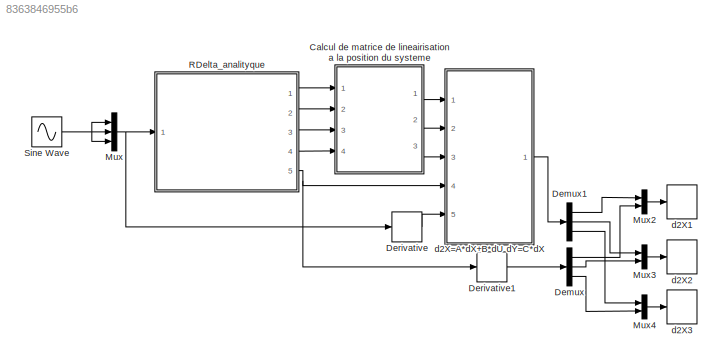
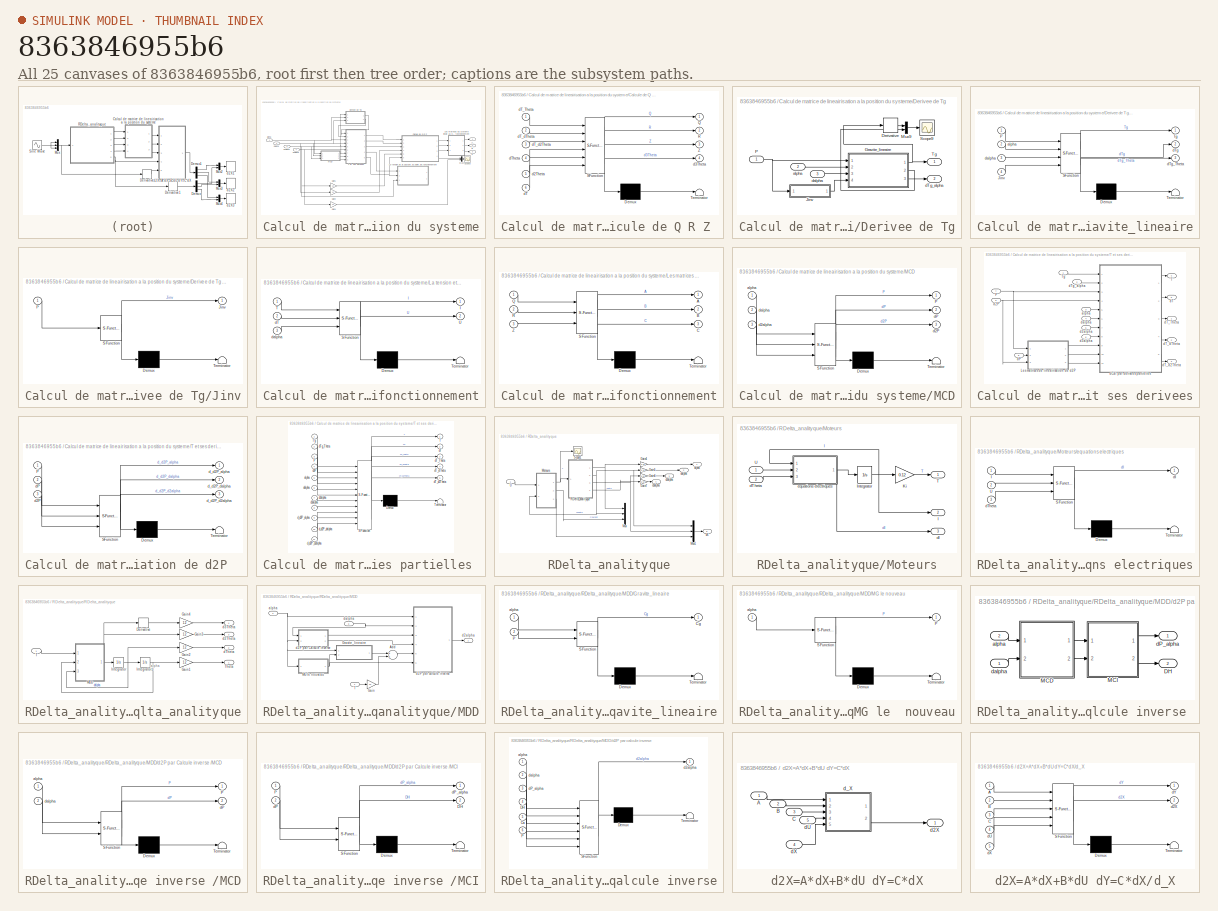
[diagram: thumbnail index - all 25 canvases of the model, root first then tree order]
MODEL slx_8363846955b6
KIND model
CONFIG AbsTol = auto
CONFIG FixedStep = auto
CONFIG MaxStep = 0.0001
CONFIG MinStep = auto
CONFIG RelTol = 1e-3
CONFIG SampleTimeConstraint = Unconstrained
CONFIG Solver = ode45
CONFIG SolverMode = Auto
CONFIG SolverName = ode45
CONFIG StartTime = 0.0
CONFIG StopTime = 0.2
BLOCK [SubSystem] Calcul de matrice de lineairisation a la position du systeme
  Ports = [4, 3]
  RequestExecContextInheritance = off
BLOCK [Outport] Calcul de matrice de lineairisation a la position du systeme/A
  IconDisplay = Port number
BLOCK [Outport] Calcul de matrice de lineairisation a la position du systeme/B
  IconDisplay = Port number
  Port = 2
BLOCK [Outport] Calcul de matrice de lineairisation a la position du systeme/C
  IconDisplay = Port number
  Port = 3
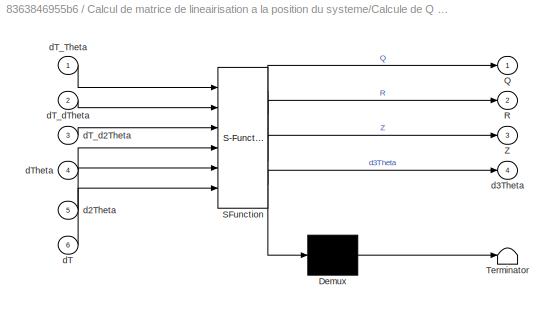
BLOCK [SubSystem] Calcul de matrice de lineairisation a la position du systeme/Calcule de Q R Z 
  ErrorFcn = Stateflow.Translate.translate
  PermitHierarchicalResolution = ExplicitOnly
  Ports = [6, 4]
  RequestExecContextInheritance = off
  SFBlockType = MATLAB Function
  TreatAsAtomicUnit = on
BLOCK [Demux] Calcul de matrice de lineairisation a la position du systeme/Calcule de Q R Z / Demux 
  Outputs = 1
  Ports = [1, 1]
BLOCK [S-Function] Calcul de matrice de lineairisation a la position du systeme/Calcule de Q R Z / SFunction 
  EnableBusSupport = on
  FunctionName = sf_sfun
  PortCounts = [6 5]
  Ports = [6, 5]
  Tag = Stateflow S-Function Modelisation_6_Validation_de_lineairisation_A_B_C 19
BLOCK [Terminator] Calcul de matrice de lineairisation a la position du systeme/Calcule de Q R Z / Terminator 
BLOCK [Outport] Calcul de matrice de lineairisation a la position du systeme/Calcule de Q R Z /Q
  IconDisplay = Port number
BLOCK [Outport] Calcul de matrice de lineairisation a la position du systeme/Calcule de Q R Z /R
  IconDisplay = Port number
  Port = 2
BLOCK [Outport] Calcul de matrice de lineairisation a la position du systeme/Calcule de Q R Z /Z
  IconDisplay = Port number
  Port = 3
BLOCK [Inport] Calcul de matrice de lineairisation a la position du systeme/Calcule de Q R Z /d2Theta
  IconDisplay = Port number
  Port = 5
BLOCK [Outport] Calcul de matrice de lineairisation a la position du systeme/Calcule de Q R Z /d3Theta
  IconDisplay = Port number
  Port = 4
BLOCK [Inport] Calcul de matrice de lineairisation a la position du systeme/Calcule de Q R Z /dT
  IconDisplay = Port number
  Port = 6
BLOCK [Inport] Calcul de matrice de lineairisation a la position du systeme/Calcule de Q R Z /dT_Theta
  IconDisplay = Port number
BLOCK [Inport] Calcul de matrice de lineairisation a la position du systeme/Calcule de Q R Z /dT_d2Theta
  IconDisplay = Port number
  Port = 3
BLOCK [Inport] Calcul de matrice de lineairisation a la position du systeme/Calcule de Q R Z /dT_dTheta
  IconDisplay = Port number
  Port = 2
BLOCK [Inport] Calcul de matrice de lineairisation a la position du systeme/Calcule de Q R Z /dTheta
  IconDisplay = Port number
  Port = 4
BLOCK [SubSystem] Calcul de matrice de lineairisation a la position du systeme/Derivee de Tg
  Ports = [3, 2]
  RequestExecContextInheritance = off
BLOCK [Derivative] Calcul de matrice de lineairisation a la position du systeme/Derivee de Tg/Derivative
BLOCK [SubSystem] Calcul de matrice de lineairisation a la position du systeme/Derivee de Tg/Gravite_lineaire
  ErrorFcn = Stateflow.Translate.translate
  PermitHierarchicalResolution = ExplicitOnly
  Ports = [4, 3]
  RequestExecContextInheritance = off
  SFBlockType = MATLAB Function
  TreatAsAtomicUnit = on
BLOCK [Demux] Calcul de matrice de lineairisation a la position du systeme/Derivee de Tg/Gravite_lineaire/ Demux 
  Outputs = 1
  Ports = [1, 1]
BLOCK [S-Function] Calcul de matrice de lineairisation a la position du systeme/Derivee de Tg/Gravite_lineaire/ SFunction 
  EnableBusSupport = on
  FunctionName = sf_sfun
  PortCounts = [4 4]
  Ports = [4, 4]
  Tag = Stateflow S-Function Modelisation_6_Validation_de_lineairisation_A_B_C 20
BLOCK [Terminator] Calcul de matrice de lineairisation a la position du systeme/Derivee de Tg/Gravite_lineaire/ Terminator 
BLOCK [Inport] Calcul de matrice de lineairisation a la position du systeme/Derivee de Tg/Gravite_lineaire/Jinv
  IconDisplay = Port number
  Port = 4
BLOCK [Inport] Calcul de matrice de lineairisation a la position du systeme/Derivee de Tg/Gravite_lineaire/P
  IconDisplay = Port number
BLOCK [Outport] Calcul de matrice de lineairisation a la position du systeme/Derivee de Tg/Gravite_lineaire/Tg
  IconDisplay = Port number
BLOCK [Inport] Calcul de matrice de lineairisation a la position du systeme/Derivee de Tg/Gravite_lineaire/alpha
  IconDisplay = Port number
  Port = 2
BLOCK [Outport] Calcul de matrice de lineairisation a la position du systeme/Derivee de Tg/Gravite_lineaire/dTg
  IconDisplay = Port number
  Port = 2
BLOCK [Outport] Calcul de matrice de lineairisation a la position du systeme/Derivee de Tg/Gravite_lineaire/dTg_Theta
  IconDisplay = Port number
  Port = 3
BLOCK [Inport] Calcul de matrice de lineairisation a la position du systeme/Derivee de Tg/Gravite_lineaire/dalpha
  IconDisplay = Port number
  Port = 3
BLOCK [SubSystem] Calcul de matrice de lineairisation a la position du systeme/Derivee de Tg/Jinv
  ErrorFcn = Stateflow.Translate.translate
  PermitHierarchicalResolution = ExplicitOnly
  Ports = [1, 1]
  RequestExecContextInheritance = off
  SFBlockType = MATLAB Function
  TreatAsAtomicUnit = on
BLOCK [Demux] Calcul de matrice de lineairisation a la position du systeme/Derivee de Tg/Jinv/ Demux 
  Outputs = 1
  Ports = [1, 1]
BLOCK [S-Function] Calcul de matrice de lineairisation a la position du systeme/Derivee de Tg/Jinv/ SFunction 
  EnableBusSupport = on
  FunctionName = sf_sfun
  PortCounts = [1 2]
  Ports = [1, 2]
  Tag = Stateflow S-Function Modelisation_6_Validation_de_lineairisation_A_B_C 21
BLOCK [Terminator] Calcul de matrice de lineairisation a la position du systeme/Derivee de Tg/Jinv/ Terminator 
BLOCK [Outport] Calcul de matrice de lineairisation a la position du systeme/Derivee de Tg/Jinv/Jinv
  IconDisplay = Port number
BLOCK [Inport] Calcul de matrice de lineairisation a la position du systeme/Derivee de Tg/Jinv/P
  IconDisplay = Port number
BLOCK [Mux] Calcul de matrice de lineairisation a la position du systeme/Derivee de Tg/Mux9
  DisplayOption = bar
  Inputs = 2
  Ports = [2, 1]
BLOCK [Inport] Calcul de matrice de lineairisation a la position du systeme/Derivee de Tg/P
  IconDisplay = Port number
BLOCK [Scope] Calcul de matrice de lineairisation a la position du systeme/Derivee de Tg/Scope9
  Floating = off
  LimitDataPoints = off
  NumInputPorts = 1
  Ports = [1]
  SaveName = ScopeData12
  TimeRange = 0.507510643892459
  YMax = 1000
  YMin = -1000
BLOCK [Outport] Calcul de matrice de lineairisation a la position du systeme/Derivee de Tg/Tg
  IconDisplay = Port number
BLOCK [Inport] Calcul de matrice de lineairisation a la position du systeme/Derivee de Tg/alpha
  IconDisplay = Port number
  Port = 2
BLOCK [Outport] Calcul de matrice de lineairisation a la position du systeme/Derivee de Tg/dTg_alpha
  IconDisplay = Port number
  Port = 2
BLOCK [Inport] Calcul de matrice de lineairisation a la position du systeme/Derivee de Tg/dalpha
  IconDisplay = Port number
  Port = 3
BLOCK [Gain] Calcul de matrice de lineairisation a la position du systeme/Gain1
  Gain = 12
  OutDataTypeStr = Inherit: Inherit via internal rule
  ParamDataTypeStr = Inherit: Inherit via internal rule
  SaturateOnIntegerOverflow = off
BLOCK [Gain] Calcul de matrice de lineairisation a la position du systeme/Gain2
  Gain = 12
  OutDataTypeStr = Inherit: Inherit via internal rule
  ParamDataTypeStr = Inherit: Inherit via internal rule
  SaturateOnIntegerOverflow = off
BLOCK [Gain] Calcul de matrice de lineairisation a la position du systeme/Gain4
  Gain = 12
  OutDataTypeStr = Inherit: Inherit via internal rule
  ParamDataTypeStr = Inherit: Inherit via internal rule
  SaturateOnIntegerOverflow = off
BLOCK [SubSystem] Calcul de matrice de lineairisation a la position du systeme/La tension et le Courant au point de fonctionnement
  ErrorFcn = Stateflow.Translate.translate
  PermitHierarchicalResolution = ExplicitOnly
  Ports = [3, 2]
  RequestExecContextInheritance = off
  SFBlockType = MATLAB Function
  TreatAsAtomicUnit = on
BLOCK [Demux] Calcul de matrice de lineairisation a la position du systeme/La tension et le Courant au point de fonctionnement/ Demux 
  Outputs = 1
  Ports = [1, 1]
BLOCK [S-Function] Calcul de matrice de lineairisation a la position du systeme/La tension et le Courant au point de fonctionnement/ SFunction 
  EnableBusSupport = on
  FunctionName = sf_sfun
  PortCounts = [3 3]
  Ports = [3, 3]
  Tag = Stateflow S-Function Modelisation_6_Validation_de_lineairisation_A_B_C 22
BLOCK [Terminator] Calcul de matrice de lineairisation a la position du systeme/La tension et le Courant au point de fonctionnement/ Terminator 
BLOCK [Outport] Calcul de matrice de lineairisation a la position du systeme/La tension et le Courant au point de fonctionnement/I
  IconDisplay = Port number
BLOCK [Inport] Calcul de matrice de lineairisation a la position du systeme/La tension et le Courant au point de fonctionnement/T
  IconDisplay = Port number
BLOCK [Outport] Calcul de matrice de lineairisation a la position du systeme/La tension et le Courant au point de fonctionnement/U
  IconDisplay = Port number
  Port = 2
BLOCK [Inport] Calcul de matrice de lineairisation a la position du systeme/La tension et le Courant au point de fonctionnement/dT
  IconDisplay = Port number
  Port = 2
BLOCK [Inport] Calcul de matrice de lineairisation a la position du systeme/La tension et le Courant au point de fonctionnement/dalpha
  IconDisplay = Port number
  Port = 3
BLOCK [SubSystem] Calcul de matrice de lineairisation a la position du systeme/Les matrices du systeme lineair au point de fonctionnement
  ErrorFcn = Stateflow.Translate.translate
  PermitHierarchicalResolution = ExplicitOnly
  Ports = [3, 3]
  RequestExecContextInheritance = off
  SFBlockType = MATLAB Function
  TreatAsAtomicUnit = on
BLOCK [Demux] Calcul de matrice de lineairisation a la position du systeme/Les matrices du systeme lineair au point de fonctionnement/ Demux 
  Outputs = 1
  Ports = [1, 1]
BLOCK [S-Function] Calcul de matrice de lineairisation a la position du systeme/Les matrices du systeme lineair au point de fonctionnement/ SFunction 
  EnableBusSupport = on
  FunctionName = sf_sfun
  PortCounts = [3 4]
  Ports = [3, 4]
  Tag = Stateflow S-Function Modelisation_6_Validation_de_lineairisation_A_B_C 25
BLOCK [Terminator] Calcul de matrice de lineairisation a la position du systeme/Les matrices du systeme lineair au point de fonctionnement/ Terminator 
BLOCK [Outport] Calcul de matrice de lineairisation a la position du systeme/Les matrices du systeme lineair au point de fonctionnement/A
  IconDisplay = Port number
BLOCK [Outport] Calcul de matrice de lineairisation a la position du systeme/Les matrices du systeme lineair au point de fonctionnement/B
  IconDisplay = Port number
  Port = 2
BLOCK [Outport] Calcul de matrice de lineairisation a la position du systeme/Les matrices du systeme lineair au point de fonctionnement/C
  IconDisplay = Port number
  Port = 3
BLOCK [Inport] Calcul de matrice de lineairisation a la position du systeme/Les matrices du systeme lineair au point de fonctionnement/Q
  IconDisplay = Port number
BLOCK [Inport] Calcul de matrice de lineairisation a la position du systeme/Les matrices du systeme lineair au point de fonctionnement/R
  IconDisplay = Port number
  Port = 2
BLOCK [Inport] Calcul de matrice de lineairisation a la position du systeme/Les matrices du systeme lineair au point de fonctionnement/Z
  IconDisplay = Port number
  Port = 3
BLOCK [SubSystem] Calcul de matrice de lineairisation a la position du systeme/MCD
  ErrorFcn = Stateflow.Translate.translate
  PermitHierarchicalResolution = ExplicitOnly
  Ports = [3, 3]
  RequestExecContextInheritance = off
  SFBlockType = MATLAB Function
  TreatAsAtomicUnit = on
BLOCK [Demux] Calcul de matrice de lineairisation a la position du systeme/MCD/ Demux 
  Outputs = 1
  Ports = [1, 1]
BLOCK [S-Function] Calcul de matrice de lineairisation a la position du systeme/MCD/ SFunction 
  EnableBusSupport = on
  FunctionName = sf_sfun
  PortCounts = [3 4]
  Ports = [3, 4]
  Tag = Stateflow S-Function Modelisation_6_Validation_de_lineairisation_A_B_C 3
BLOCK [Terminator] Calcul de matrice de lineairisation a la position du systeme/MCD/ Terminator 
BLOCK [Outport] Calcul de matrice de lineairisation a la position du systeme/MCD/P
  IconDisplay = Port number
BLOCK [Inport] Calcul de matrice de lineairisation a la position du systeme/MCD/alpha
  IconDisplay = Port number
BLOCK [Outport] Calcul de matrice de lineairisation a la position du systeme/MCD/d2P
  IconDisplay = Port number
  Port = 3
BLOCK [Inport] Calcul de matrice de lineairisation a la position du systeme/MCD/d2alpha
  IconDisplay = Port number
  Port = 3
BLOCK [Outport] Calcul de matrice de lineairisation a la position du systeme/MCD/dP
  IconDisplay = Port number
  Port = 2
BLOCK [Inport] Calcul de matrice de lineairisation a la position du systeme/MCD/dalpha
  IconDisplay = Port number
  Port = 2
BLOCK [Mux] Calcul de matrice de lineairisation a la position du systeme/Mux3
  DisplayOption = bar
  Inputs = 2
  Ports = [2, 1]
BLOCK [Scope] Calcul de matrice de lineairisation a la position du systeme/Scope3
  Floating = off
  LimitDataPoints = off
  NumInputPorts = 1
  Ports = [1]
  TimeRange = 2.077341948455237
  YMax = 0.5
  YMin = -0.45
BLOCK [SubSystem] Calcul de matrice de lineairisation a la position du systeme/T et ses derivees
  Ports = [9, 5]
  RequestExecContextInheritance = off
BLOCK [SubSystem] Calcul de matrice de lineairisation a la position du systeme/T et ses derivees/Les matrices de lineairisation de d2P  
  ErrorFcn = Stateflow.Translate.translate
  PermitHierarchicalResolution = ExplicitOnly
  Ports = [3, 3]
  RequestExecContextInheritance = off
  SFBlockType = MATLAB Function
  TreatAsAtomicUnit = on
BLOCK [Demux] Calcul de matrice de lineairisation a la position du systeme/T et ses derivees/Les matrices de lineairisation de d2P  / Demux 
  Outputs = 1
  Ports = [1, 1]
BLOCK [S-Function] Calcul de matrice de lineairisation a la position du systeme/T et ses derivees/Les matrices de lineairisation de d2P  / SFunction 
  EnableBusSupport = on
  FunctionName = sf_sfun
  PortCounts = [3 4]
  Ports = [3, 4]
  Tag = Stateflow S-Function Modelisation_6_Validation_de_lineairisation_A_B_C 31
BLOCK [Terminator] Calcul de matrice de lineairisation a la position du systeme/T et ses derivees/Les matrices de lineairisation de d2P  / Terminator 
BLOCK [Inport] Calcul de matrice de lineairisation a la position du systeme/T et ses derivees/Les matrices de lineairisation de d2P  /P
  IconDisplay = Port number
BLOCK [Inport] Calcul de matrice de lineairisation a la position du systeme/T et ses derivees/Les matrices de lineairisation de d2P  /d2P
  IconDisplay = Port number
  Port = 3
BLOCK [Inport] Calcul de matrice de lineairisation a la position du systeme/T et ses derivees/Les matrices de lineairisation de d2P  /dP
  IconDisplay = Port number
  Port = 2
BLOCK [Outport] Calcul de matrice de lineairisation a la position du systeme/T et ses derivees/Les matrices de lineairisation de d2P  /d_d2P_alpha
  IconDisplay = Port number
BLOCK [Outport] Calcul de matrice de lineairisation a la position du systeme/T et ses derivees/Les matrices de lineairisation de d2P  /d_d2P_d2alpha
  IconDisplay = Port number
  Port = 3
BLOCK [Outport] Calcul de matrice de lineairisation a la position du systeme/T et ses derivees/Les matrices de lineairisation de d2P  /d_d2P_dalpha
  IconDisplay = Port number
  Port = 2
BLOCK [Inport] Calcul de matrice de lineairisation a la position du systeme/T et ses derivees/P
  IconDisplay = Port number
  Port = 7
BLOCK [Outport] Calcul de matrice de lineairisation a la position du systeme/T et ses derivees/T
  IconDisplay = Port number
  Port = 4
BLOCK [Inport] Calcul de matrice de lineairisation a la position du systeme/T et ses derivees/Tg
  IconDisplay = Port number
BLOCK [Inport] Calcul de matrice de lineairisation a la position du systeme/T et ses derivees/alpha
  IconDisplay = Port number
  Port = 3
BLOCK [Inport] Calcul de matrice de lineairisation a la position du systeme/T et ses derivees/d2P
  IconDisplay = Port number
  Port = 9
BLOCK [Inport] Calcul de matrice de lineairisation a la position du systeme/T et ses derivees/d2alpha
  IconDisplay = Port number
  Port = 5
BLOCK [Inport] Calcul de matrice de lineairisation a la position du systeme/T et ses derivees/d3alpha
  IconDisplay = Port number
  Port = 6
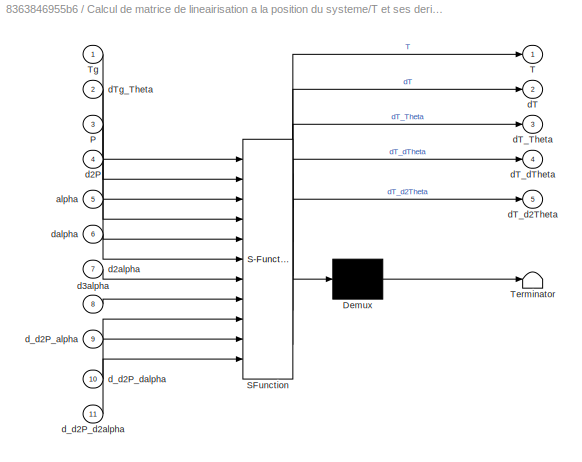
BLOCK [SubSystem] Calcul de matrice de lineairisation a la position du systeme/T et ses derivees/dCai par derivees partielles 
  ErrorFcn = Stateflow.Translate.translate
  PermitHierarchicalResolution = ExplicitOnly
  Ports = [11, 5]
  RequestExecContextInheritance = off
  SFBlockType = MATLAB Function
  TreatAsAtomicUnit = on
BLOCK [Demux] Calcul de matrice de lineairisation a la position du systeme/T et ses derivees/dCai par derivees partielles / Demux 
  Outputs = 1
  Ports = [1, 1]
BLOCK [S-Function] Calcul de matrice de lineairisation a la position du systeme/T et ses derivees/dCai par derivees partielles / SFunction 
  EnableBusSupport = on
  FunctionName = sf_sfun
  PortCounts = [11 6]
  Ports = [11, 6]
  Tag = Stateflow S-Function Modelisation_6_Validation_de_lineairisation_A_B_C 32
BLOCK [Terminator] Calcul de matrice de lineairisation a la position du systeme/T et ses derivees/dCai par derivees partielles / Terminator 
BLOCK [Inport] Calcul de matrice de lineairisation a la position du systeme/T et ses derivees/dCai par derivees partielles /P
  IconDisplay = Port number
  Port = 3
BLOCK [Outport] Calcul de matrice de lineairisation a la position du systeme/T et ses derivees/dCai par derivees partielles /T
  IconDisplay = Port number
BLOCK [Inport] Calcul de matrice de lineairisation a la position du systeme/T et ses derivees/dCai par derivees partielles /Tg
  IconDisplay = Port number
BLOCK [Inport] Calcul de matrice de lineairisation a la position du systeme/T et ses derivees/dCai par derivees partielles /alpha
  IconDisplay = Port number
  Port = 5
BLOCK [Inport] Calcul de matrice de lineairisation a la position du systeme/T et ses derivees/dCai par derivees partielles /d2P
  IconDisplay = Port number
  Port = 4
BLOCK [Inport] Calcul de matrice de lineairisation a la position du systeme/T et ses derivees/dCai par derivees partielles /d2alpha
  IconDisplay = Port number
  Port = 7
BLOCK [Inport] Calcul de matrice de lineairisation a la position du systeme/T et ses derivees/dCai par derivees partielles /d3alpha
  IconDisplay = Port number
  Port = 8
BLOCK [Outport] Calcul de matrice de lineairisation a la position du systeme/T et ses derivees/dCai par derivees partielles /dT
  IconDisplay = Port number
  Port = 2
BLOCK [Outport] Calcul de matrice de lineairisation a la position du systeme/T et ses derivees/dCai par derivees partielles /dT_Theta
  IconDisplay = Port number
  Port = 3
BLOCK [Outport] Calcul de matrice de lineairisation a la position du systeme/T et ses derivees/dCai par derivees partielles /dT_d2Theta
  IconDisplay = Port number
  Port = 5
BLOCK [Outport] Calcul de matrice de lineairisation a la position du systeme/T et ses derivees/dCai par derivees partielles /dT_dTheta
  IconDisplay = Port number
  Port = 4
BLOCK [Inport] Calcul de matrice de lineairisation a la position du systeme/T et ses derivees/dCai par derivees partielles /dTg_Theta
  IconDisplay = Port number
  Port = 2
BLOCK [Inport] Calcul de matrice de lineairisation a la position du systeme/T et ses derivees/dCai par derivees partielles /d_d2P_alpha
  IconDisplay = Port number
  Port = 9
BLOCK [Inport] Calcul de matrice de lineairisation a la position du systeme/T et ses derivees/dCai par derivees partielles /d_d2P_d2alpha
  IconDisplay = Port number
  Port = 11
BLOCK [Inport] Calcul de matrice de lineairisation a la position du systeme/T et ses derivees/dCai par derivees partielles /d_d2P_dalpha
  IconDisplay = Port number
  Port = 10
BLOCK [Inport] Calcul de matrice de lineairisation a la position du systeme/T et ses derivees/dCai par derivees partielles /dalpha
  IconDisplay = Port number
  Port = 6
BLOCK [Inport] Calcul de matrice de lineairisation a la position du systeme/T et ses derivees/dP
  IconDisplay = Port number
  Port = 8
BLOCK [Outport] Calcul de matrice de lineairisation a la position du systeme/T et ses derivees/dT
  IconDisplay = Port number
  Port = 5
BLOCK [Outport] Calcul de matrice de lineairisation a la position du systeme/T et ses derivees/dT_Theta
  IconDisplay = Port number
BLOCK [Outport] Calcul de matrice de lineairisation a la position du systeme/T et ses derivees/dT_d2Theta
  IconDisplay = Port number
  Port = 3
BLOCK [Outport] Calcul de matrice de lineairisation a la position du systeme/T et ses derivees/dT_dTheta
  IconDisplay = Port number
  Port = 2
BLOCK [Inport] Calcul de matrice de lineairisation a la position du systeme/T et ses derivees/dTg_alpha
  IconDisplay = Port number
  Port = 2
BLOCK [Inport] Calcul de matrice de lineairisation a la position du systeme/T et ses derivees/dalpha
  IconDisplay = Port number
  Port = 4
BLOCK [Inport] Calcul de matrice de lineairisation a la position du systeme/alpha
  IconDisplay = Port number
BLOCK [Inport] Calcul de matrice de lineairisation a la position du systeme/d2alpha
  IconDisplay = Port number
  Port = 3
BLOCK [Inport] Calcul de matrice de lineairisation a la position du systeme/d3alpha
  IconDisplay = Port number
  Port = 4
BLOCK [Inport] Calcul de matrice de lineairisation a la position du systeme/dalpha
  IconDisplay = Port number
  Port = 2
BLOCK [Demux] Demux
  DisplayOption = bar
  Outputs = 3
  Ports = [1, 3]
BLOCK [Demux] Demux1
  DisplayOption = bar
  Outputs = 3
  Ports = [1, 3]
BLOCK [Derivative] Derivative
BLOCK [Derivative] Derivative1
BLOCK [Mux] Mux
  DisplayOption = bar
  Inputs = 3
  Ports = [3, 1]
BLOCK [Mux] Mux2
  DisplayOption = bar
  Inputs = 2
  Ports = [2, 1]
BLOCK [Mux] Mux3
  DisplayOption = bar
  Inputs = 2
  Ports = [2, 1]
BLOCK [Mux] Mux4
  DisplayOption = bar
  Inputs = 2
  Ports = [2, 1]
BLOCK [SubSystem] RDelta_analityque
  Ports = [1, 5]
  RequestExecContextInheritance = off
BLOCK [Gain] RDelta_analityque/Gain4
  Gain = 1/12
  OutDataTypeStr = Inherit: Inherit via internal rule
  ParamDataTypeStr = Inherit: Inherit via internal rule
  SaturateOnIntegerOverflow = off
BLOCK [Gain] RDelta_analityque/Gain5
  Gain = 1/12
  OutDataTypeStr = Inherit: Inherit via internal rule
  ParamDataTypeStr = Inherit: Inherit via internal rule
  SaturateOnIntegerOverflow = off
BLOCK [Gain] RDelta_analityque/Gain6
  Gain = 1/12
  OutDataTypeStr = Inherit: Inherit via internal rule
  ParamDataTypeStr = Inherit: Inherit via internal rule
  SaturateOnIntegerOverflow = off
BLOCK [Gain] RDelta_analityque/Gain7
  Gain = 1/12
  OutDataTypeStr = Inherit: Inherit via internal rule
  ParamDataTypeStr = Inherit: Inherit via internal rule
  SaturateOnIntegerOverflow = off
BLOCK [SubSystem] RDelta_analityque/Moteurs
  Ports = [2, 3]
  RequestExecContextInheritance = off
BLOCK [Outport] RDelta_analityque/Moteurs/I
  IconDisplay = Port number
  Port = 2
BLOCK [Integrator] RDelta_analityque/Moteurs/Integrator
  InitialCondition = -0.0108
  Ports = [1, 1]
BLOCK [Gain] RDelta_analityque/Moteurs/Ki
  Gain = 0.12
  OutDataTypeStr = Inherit: Inherit via internal rule
  ParamDataTypeStr = Inherit: Inherit via internal rule
  SaturateOnIntegerOverflow = off
BLOCK [Outport] RDelta_analityque/Moteurs/T
  IconDisplay = Port number
BLOCK [Inport] RDelta_analityque/Moteurs/U
  IconDisplay = Port number
BLOCK [Outport] RDelta_analityque/Moteurs/dI
  IconDisplay = Port number
  Port = 3
BLOCK [Inport] RDelta_analityque/Moteurs/dTheta
  IconDisplay = Port number
  Port = 2
BLOCK [SubSystem] RDelta_analityque/Moteurs/equations electriques
  ErrorFcn = Stateflow.Translate.translate
  PermitHierarchicalResolution = ExplicitOnly
  Ports = [3, 1]
  RequestExecContextInheritance = off
  SFBlockType = MATLAB Function
  TreatAsAtomicUnit = on
BLOCK [Demux] RDelta_analityque/Moteurs/equations electriques/ Demux 
  Outputs = 1
  Ports = [1, 1]
BLOCK [S-Function] RDelta_analityque/Moteurs/equations electriques/ SFunction 
  EnableBusSupport = on
  FunctionName = sf_sfun
  PortCounts = [3 2]
  Ports = [3, 2]
  Tag = Stateflow S-Function Modelisation_6_Validation_de_lineairisation_A_B_C 26
BLOCK [Terminator] RDelta_analityque/Moteurs/equations electriques/ Terminator 
BLOCK [Inport] RDelta_analityque/Moteurs/equations electriques/I
  IconDisplay = Port number
BLOCK [Inport] RDelta_analityque/Moteurs/equations electriques/U
  IconDisplay = Port number
  Port = 2
BLOCK [Outport] RDelta_analityque/Moteurs/equations electriques/dI
  IconDisplay = Port number
BLOCK [Inport] RDelta_analityque/Moteurs/equations electriques/dTheta
  IconDisplay = Port number
  Port = 3
BLOCK [Mux] RDelta_analityque/Mux
  DisplayOption = bar
  Inputs = 3
  Ports = [3, 1]
BLOCK [Mux] RDelta_analityque/Mux1
  DisplayOption = bar
  Inputs = 3
  Ports = [3, 1]
BLOCK [SubSystem] RDelta_analityque/RDelta_analityque
  Ports = [1, 4]
  RequestExecContextInheritance = off
BLOCK [Derivative] RDelta_analityque/RDelta_analityque/Derivative
BLOCK [Gain] RDelta_analityque/RDelta_analityque/Gain1
  Gain = 12
  OutDataTypeStr = Inherit: Inherit via internal rule
  ParamDataTypeStr = Inherit: Inherit via internal rule
  SaturateOnIntegerOverflow = off
BLOCK [Gain] RDelta_analityque/RDelta_analityque/Gain2
  Gain = 12
  OutDataTypeStr = Inherit: Inherit via internal rule
  ParamDataTypeStr = Inherit: Inherit via internal rule
  SaturateOnIntegerOverflow = off
BLOCK [Gain] RDelta_analityque/RDelta_analityque/Gain3
  Gain = 12
  OutDataTypeStr = Inherit: Inherit via internal rule
  ParamDataTypeStr = Inherit: Inherit via internal rule
  SaturateOnIntegerOverflow = off
BLOCK [Gain] RDelta_analityque/RDelta_analityque/Gain4
  Gain = 12
  OutDataTypeStr = Inherit: Inherit via internal rule
  ParamDataTypeStr = Inherit: Inherit via internal rule
  SaturateOnIntegerOverflow = off
BLOCK [Integrator] RDelta_analityque/RDelta_analityque/Integrator
  InitialCondition = [0;0;0]
  Ports = [1, 1]
BLOCK [Integrator] RDelta_analityque/RDelta_analityque/Integrator1
  InitialCondition = 0.0651*[1;1;1]
  Ports = [1, 1]
BLOCK [SubSystem] RDelta_analityque/RDelta_analityque/MDD
  Ports = [3, 1]
  RequestExecContextInheritance = off
BLOCK [Sum] RDelta_analityque/RDelta_analityque/MDD/Add
  InputSameDT = off
  OutDataTypeStr = Inherit: Inherit via internal rule
  Ports = [2, 1]
  SaturateOnIntegerOverflow = off
BLOCK [Gain] RDelta_analityque/RDelta_analityque/MDD/Gain
  Gain = 12
  OutDataTypeStr = Inherit: Inherit via internal rule
  ParamDataTypeStr = Inherit: Inherit via internal rule
  SaturateOnIntegerOverflow = off
BLOCK [SubSystem] RDelta_analityque/RDelta_analityque/MDD/Gravite_lineaire
  ErrorFcn = Stateflow.Translate.translate
  PermitHierarchicalResolution = ExplicitOnly
  Ports = [2, 1]
  RequestExecContextInheritance = off
  SFBlockType = MATLAB Function
  TreatAsAtomicUnit = on
BLOCK [Demux] RDelta_analityque/RDelta_analityque/MDD/Gravite_lineaire/ Demux 
  Outputs = 1
  Ports = [1, 1]
BLOCK [S-Function] RDelta_analityque/RDelta_analityque/MDD/Gravite_lineaire/ SFunction 
  EnableBusSupport = on
  FunctionName = sf_sfun
  PortCounts = [2 2]
  Ports = [2, 2]
  Tag = Stateflow S-Function Modelisation_6_Validation_de_lineairisation_A_B_C 1
BLOCK [Terminator] RDelta_analityque/RDelta_analityque/MDD/Gravite_lineaire/ Terminator 
BLOCK [Outport] RDelta_analityque/RDelta_analityque/MDD/Gravite_lineaire/Cg
  IconDisplay = Port number
BLOCK [Inport] RDelta_analityque/RDelta_analityque/MDD/Gravite_lineaire/P
  IconDisplay = Port number
  Port = 2
BLOCK [Inport] RDelta_analityque/RDelta_analityque/MDD/Gravite_lineaire/alpha
  IconDisplay = Port number
BLOCK [SubSystem] RDelta_analityque/RDelta_analityque/MDD/MG le  nouveau
  ErrorFcn = Stateflow.Translate.translate
  PermitHierarchicalResolution = ExplicitOnly
  Ports = [1, 1]
  RequestExecContextInheritance = off
  SFBlockType = MATLAB Function
  TreatAsAtomicUnit = on
BLOCK [Demux] RDelta_analityque/RDelta_analityque/MDD/MG le  nouveau/ Demux 
  Outputs = 1
  Ports = [1, 1]
BLOCK [S-Function] RDelta_analityque/RDelta_analityque/MDD/MG le  nouveau/ SFunction 
  EnableBusSupport = on
  FunctionName = sf_sfun
  PortCounts = [1 2]
  Ports = [1, 2]
  Tag = Stateflow S-Function Modelisation_6_Validation_de_lineairisation_A_B_C 12
BLOCK [Terminator] RDelta_analityque/RDelta_analityque/MDD/MG le  nouveau/ Terminator 
BLOCK [Outport] RDelta_analityque/RDelta_analityque/MDD/MG le  nouveau/P
  IconDisplay = Port number
BLOCK [Inport] RDelta_analityque/RDelta_analityque/MDD/MG le  nouveau/alpha
  IconDisplay = Port number
BLOCK [Inport] RDelta_analityque/RDelta_analityque/MDD/T
  IconDisplay = Port number
BLOCK [Inport] RDelta_analityque/RDelta_analityque/MDD/alpha
  IconDisplay = Port number
  Port = 2
BLOCK [SubSystem] RDelta_analityque/RDelta_analityque/MDD/d2P par Calcule inverse 
  Ports = [2, 2]
  RequestExecContextInheritance = off
BLOCK [Outport] RDelta_analityque/RDelta_analityque/MDD/d2P par Calcule inverse /DH
  IconDisplay = Port number
  Port = 2
BLOCK [SubSystem] RDelta_analityque/RDelta_analityque/MDD/d2P par Calcule inverse /MCD
  ErrorFcn = Stateflow.Translate.translate
  PermitHierarchicalResolution = ExplicitOnly
  Ports = [2, 2]
  RequestExecContextInheritance = off
  SFBlockType = MATLAB Function
  TreatAsAtomicUnit = on
BLOCK [Demux] RDelta_analityque/RDelta_analityque/MDD/d2P par Calcule inverse /MCD/ Demux 
  Outputs = 1
  Ports = [1, 1]
BLOCK [S-Function] RDelta_analityque/RDelta_analityque/MDD/d2P par Calcule inverse /MCD/ SFunction 
  EnableBusSupport = on
  FunctionName = sf_sfun
  PortCounts = [2 3]
  Ports = [2, 3]
  Tag = Stateflow S-Function Modelisation_6_Validation_de_lineairisation_A_B_C 13
BLOCK [Terminator] RDelta_analityque/RDelta_analityque/MDD/d2P par Calcule inverse /MCD/ Terminator 
BLOCK [Outport] RDelta_analityque/RDelta_analityque/MDD/d2P par Calcule inverse /MCD/P
  IconDisplay = Port number
BLOCK [Inport] RDelta_analityque/RDelta_analityque/MDD/d2P par Calcule inverse /MCD/alpha
  IconDisplay = Port number
BLOCK [Outport] RDelta_analityque/RDelta_analityque/MDD/d2P par Calcule inverse /MCD/dP
  IconDisplay = Port number
  Port = 2
BLOCK [Inport] RDelta_analityque/RDelta_analityque/MDD/d2P par Calcule inverse /MCD/dalpha
  IconDisplay = Port number
  Port = 2
BLOCK [SubSystem] RDelta_analityque/RDelta_analityque/MDD/d2P par Calcule inverse /MCI
  ErrorFcn = Stateflow.Translate.translate
  PermitHierarchicalResolution = ExplicitOnly
  Ports = [2, 2]
  RequestExecContextInheritance = off
  SFBlockType = MATLAB Function
  TreatAsAtomicUnit = on
BLOCK [Demux] RDelta_analityque/RDelta_analityque/MDD/d2P par Calcule inverse /MCI/ Demux 
  Outputs = 1
  Ports = [1, 1]
BLOCK [S-Function] RDelta_analityque/RDelta_analityque/MDD/d2P par Calcule inverse /MCI/ SFunction 
  EnableBusSupport = on
  FunctionName = sf_sfun
  PortCounts = [2 3]
  Ports = [2, 3]
  Tag = Stateflow S-Function Modelisation_6_Validation_de_lineairisation_A_B_C 17
BLOCK [Terminator] RDelta_analityque/RDelta_analityque/MDD/d2P par Calcule inverse /MCI/ Terminator 
BLOCK [Outport] RDelta_analityque/RDelta_analityque/MDD/d2P par Calcule inverse /MCI/DH
  IconDisplay = Port number
  Port = 2
BLOCK [Inport] RDelta_analityque/RDelta_analityque/MDD/d2P par Calcule inverse /MCI/P
  IconDisplay = Port number
BLOCK [Inport] RDelta_analityque/RDelta_analityque/MDD/d2P par Calcule inverse /MCI/dP
  IconDisplay = Port number
  Port = 2
BLOCK [Outport] RDelta_analityque/RDelta_analityque/MDD/d2P par Calcule inverse /MCI/dP_alpha
  IconDisplay = Port number
BLOCK [Inport] RDelta_analityque/RDelta_analityque/MDD/d2P par Calcule inverse /alpha
  IconDisplay = Port number
  Port = 2
BLOCK [Outport] RDelta_analityque/RDelta_analityque/MDD/d2P par Calcule inverse /dP_alpha
  IconDisplay = Port number
BLOCK [Inport] RDelta_analityque/RDelta_analityque/MDD/d2P par Calcule inverse /dalpha
  IconDisplay = Port number
BLOCK [SubSystem] RDelta_analityque/RDelta_analityque/MDD/d2P par calcule inverse
  ErrorFcn = Stateflow.Translate.translate
  PermitHierarchicalResolution = ExplicitOnly
  Ports = [6, 1]
  RequestExecContextInheritance = off
  SFBlockType = MATLAB Function
  TreatAsAtomicUnit = on
BLOCK [Demux] RDelta_analityque/RDelta_analityque/MDD/d2P par calcule inverse/ Demux 
  Outputs = 1
  Ports = [1, 1]
BLOCK [S-Function] RDelta_analityque/RDelta_analityque/MDD/d2P par calcule inverse/ SFunction 
  EnableBusSupport = on
  FunctionName = sf_sfun
  PortCounts = [6 2]
  Ports = [6, 2]
  Tag = Stateflow S-Function Modelisation_6_Validation_de_lineairisation_A_B_C 18
BLOCK [Terminator] RDelta_analityque/RDelta_analityque/MDD/d2P par calcule inverse/ Terminator 
BLOCK [Inport] RDelta_analityque/RDelta_analityque/MDD/d2P par calcule inverse/Ca
  IconDisplay = Port number
  Port = 5
BLOCK [Inport] RDelta_analityque/RDelta_analityque/MDD/d2P par calcule inverse/DH
  IconDisplay = Port number
  Port = 4
BLOCK [Inport] RDelta_analityque/RDelta_analityque/MDD/d2P par calcule inverse/P
  IconDisplay = Port number
  Port = 6
BLOCK [Inport] RDelta_analityque/RDelta_analityque/MDD/d2P par calcule inverse/alpha
  IconDisplay = Port number
BLOCK [Outport] RDelta_analityque/RDelta_analityque/MDD/d2P par calcule inverse/d2alpha
  IconDisplay = Port number
BLOCK [Inport] RDelta_analityque/RDelta_analityque/MDD/d2P par calcule inverse/dP_alpha
  IconDisplay = Port number
  Port = 3
BLOCK [Inport] RDelta_analityque/RDelta_analityque/MDD/d2P par calcule inverse/dalpha
  IconDisplay = Port number
  Port = 2
BLOCK [Outport] RDelta_analityque/RDelta_analityque/MDD/d2alpha
  IconDisplay = Port number
BLOCK [Inport] RDelta_analityque/RDelta_analityque/MDD/dalpha
  IconDisplay = Port number
  Port = 3
BLOCK [Inport] RDelta_analityque/RDelta_analityque/T
  IconDisplay = Port number
BLOCK [Outport] RDelta_analityque/RDelta_analityque/Theta
  IconDisplay = Port number
BLOCK [Outport] RDelta_analityque/RDelta_analityque/d2Theta
  IconDisplay = Port number
  Port = 3
BLOCK [Outport] RDelta_analityque/RDelta_analityque/d3Theta
  IconDisplay = Port number
  Port = 4
BLOCK [Outport] RDelta_analityque/RDelta_analityque/dTheta
  IconDisplay = Port number
  Port = 2
BLOCK [Scope] RDelta_analityque/Scope1
  Floating = off
  NumInputPorts = 1
  Ports = [1]
  SaveName = ScopeData3
  YMax = -0.0095
  YMin = -0.013
BLOCK [Inport] RDelta_analityque/U
  IconDisplay = Port number
BLOCK [Outport] RDelta_analityque/alpha
  IconDisplay = Port number
BLOCK [Outport] RDelta_analityque/d2alpha
  IconDisplay = Port number
  Port = 3
BLOCK [Outport] RDelta_analityque/d3alpha
  IconDisplay = Port number
  Port = 4
BLOCK [Outport] RDelta_analityque/dX
  IconDisplay = Port number
  Port = 5
BLOCK [Outport] RDelta_analityque/dalpha
  IconDisplay = Port number
  Port = 2
BLOCK [Sin] Sine Wave
  Amplitude = 0.5
  Ports = [0, 1]
  SampleTime = 0
BLOCK [TimeScope] d2X1
  DefaultConfigurationName = spbscopes.TimeScopeBlockCfg
  NumInputPorts = 1
  Ports = [1]
  ScopeSpecificationString = spbscopes.TimeScopeBlockCfg('CurrentConfiguration', extmgr.ConfigurationSet(extmgr.Configuration('Core','General UI',true,'FigureColor',[1 1 1]),extmgr.Configuration('Core','Source UI',true),extmgr.Configuration('Sources','WiredSimulink',true,'DataLoggingVariableName','ScopeData1'),extmgr.Configuration('Visuals','Time Domain',true,'DisplayPropertyDefaults',struct('MinYLimReal','-27.7259','MaxYLimR...<+2682ch>
  UserDataPersistent = on
BLOCK [TimeScope] d2X2
  DefaultConfigurationName = spbscopes.TimeScopeBlockCfg
  NumInputPorts = 1
  Ports = [1]
  ScopeSpecificationString = spbscopes.TimeScopeBlockCfg('CurrentConfiguration', extmgr.ConfigurationSet(extmgr.Configuration('Core','General UI',true,'FigureColor',[1 1 1]),extmgr.Configuration('Core','Source UI',true),extmgr.Configuration('Sources','WiredSimulink',true,'DataLoggingVariableName','ScopeData2'),extmgr.Configuration('Visuals','Time Domain',true,'DisplayPropertyDefaults',struct('MinYLimReal','-107.417','MaxYLimR...<+2682ch>
  UserDataPersistent = on
BLOCK [TimeScope] d2X3
  DefaultConfigurationName = spbscopes.TimeScopeBlockCfg
  NumInputPorts = 1
  Ports = [1]
  ScopeSpecificationString = spbscopes.TimeScopeBlockCfg('CurrentConfiguration', extmgr.ConfigurationSet(extmgr.Configuration('Core','General UI',true,'FigureColor',[1 1 1]),extmgr.Configuration('Core','Source UI',true),extmgr.Configuration('Sources','WiredSimulink',true,'DataLoggingVariableName','ScopeData4'),extmgr.Configuration('Visuals','Time Domain',true,'DisplayPropertyDefaults',struct('MinYLimReal','-0.200236','MaxYLim...<+2684ch>
  UserDataPersistent = on
BLOCK [SubSystem] d2X=A*dX+B*dU dY=C*dX
  Ports = [5, 1]
  RequestExecContextInheritance = off
BLOCK [Inport] d2X=A*dX+B*dU dY=C*dX/A
  IconDisplay = Port number
BLOCK [Inport] d2X=A*dX+B*dU dY=C*dX/B
  IconDisplay = Port number
  Port = 2
BLOCK [Inport] d2X=A*dX+B*dU dY=C*dX/C
  IconDisplay = Port number
  Port = 3
BLOCK [Outport] d2X=A*dX+B*dU dY=C*dX/d2X
  IconDisplay = Port number
BLOCK [Inport] d2X=A*dX+B*dU dY=C*dX/dU
  IconDisplay = Port number
  Port = 5
BLOCK [Inport] d2X=A*dX+B*dU dY=C*dX/dX
  IconDisplay = Port number
  Port = 4
BLOCK [SubSystem] d2X=A*dX+B*dU dY=C*dX/d_X
  ErrorFcn = Stateflow.Translate.translate
  PermitHierarchicalResolution = ExplicitOnly
  Ports = [5, 2]
  RequestExecContextInheritance = off
  SFBlockType = MATLAB Function
  TreatAsAtomicUnit = on
BLOCK [Demux] d2X=A*dX+B*dU dY=C*dX/d_X/ Demux 
  Outputs = 1
  Ports = [1, 1]
BLOCK [S-Function] d2X=A*dX+B*dU dY=C*dX/d_X/ SFunction 
  EnableBusSupport = on
  FunctionName = sf_sfun
  PortCounts = [5 3]
  Ports = [5, 3]
  Tag = Stateflow S-Function Modelisation_6_Validation_de_lineairisation_A_B_C 10
BLOCK [Terminator] d2X=A*dX+B*dU dY=C*dX/d_X/ Terminator 
BLOCK [Inport] d2X=A*dX+B*dU dY=C*dX/d_X/A
  IconDisplay = Port number
BLOCK [Inport] d2X=A*dX+B*dU dY=C*dX/d_X/B
  IconDisplay = Port number
  Port = 2
BLOCK [Inport] d2X=A*dX+B*dU dY=C*dX/d_X/C
  IconDisplay = Port number
  Port = 3
BLOCK [Outport] d2X=A*dX+B*dU dY=C*dX/d_X/d2X
  IconDisplay = Port number
  Port = 2
BLOCK [Inport] d2X=A*dX+B*dU dY=C*dX/d_X/dU
  IconDisplay = Port number
  Port = 4
BLOCK [Inport] d2X=A*dX+B*dU dY=C*dX/d_X/dX
  IconDisplay = Port number
  Port = 5
BLOCK [Outport] d2X=A*dX+B*dU dY=C*dX/d_X/dY
  IconDisplay = Port number
ANNOTATION RDelta_analityque/RDelta_analityque: alpha
LINE Calcul de matrice de lineairisation a la position du systeme/Calcule de Q R Z :1 -> Calcul de matrice de lineairisation a la position du systeme/Les matrices du systeme lineair au point de fonctionnement:1
LINE Calcul de matrice de lineairisation a la position du systeme/Calcule de Q R Z :2 -> Calcul de matrice de lineairisation a la position du systeme/Les matrices du systeme lineair au point de fonctionnement:2
LINE Calcul de matrice de lineairisation a la position du systeme/Calcule de Q R Z :3 -> Calcul de matrice de lineairisation a la position du systeme/Les matrices du systeme lineair au point de fonctionnement:3
LINE Calcul de matrice de lineairisation a la position du systeme/Calcule de Q R Z :4 -> Calcul de matrice de lineairisation a la position du systeme/Mux3:1
LINE Calcul de matrice de lineairisation a la position du systeme/Derivee de Tg/Derivative:1 -> Calcul de matrice de lineairisation a la position du systeme/Derivee de Tg/Mux9:1
NET Calcul de matrice de lineairisation a la position du systeme/Derivee de Tg/Gravite_lineaire:1 -> Calcul de matrice de lineairisation a la position du systeme/Derivee de Tg/Derivative:1, Calcul de matrice de lineairisation a la position du systeme/Derivee de Tg/Tg:1
LINE Calcul de matrice de lineairisation a la position du systeme/Derivee de Tg/Gravite_lineaire:2 -> Calcul de matrice de lineairisation a la position du systeme/Derivee de Tg/Mux9:2
LINE Calcul de matrice de lineairisation a la position du systeme/Derivee de Tg/Gravite_lineaire:3 -> Calcul de matrice de lineairisation a la position du systeme/Derivee de Tg/dTg_alpha:1
LINE Calcul de matrice de lineairisation a la position du systeme/Derivee de Tg/Jinv:1 -> Calcul de matrice de lineairisation a la position du systeme/Derivee de Tg/Gravite_lineaire:4
LINE Calcul de matrice de lineairisation a la position du systeme/Derivee de Tg/Mux9:1 -> Calcul de matrice de lineairisation a la position du systeme/Derivee de Tg/Scope9:1
NET Calcul de matrice de lineairisation a la position du systeme/Derivee de Tg/P:1 -> Calcul de matrice de lineairisation a la position du systeme/Derivee de Tg/Gravite_lineaire:1, Calcul de matrice de lineairisation a la position du systeme/Derivee de Tg/Jinv:1
LINE Calcul de matrice de lineairisation a la position du systeme/Derivee de Tg/alpha:1 -> Calcul de matrice de lineairisation a la position du systeme/Derivee de Tg/Gravite_lineaire:2
LINE Calcul de matrice de lineairisation a la position du systeme/Derivee de Tg/dalpha:1 -> Calcul de matrice de lineairisation a la position du systeme/Derivee de Tg/Gravite_lineaire:3
LINE Calcul de matrice de lineairisation a la position du systeme/Derivee de Tg:1 -> Calcul de matrice de lineairisation a la position du systeme/T et ses derivees:1
LINE Calcul de matrice de lineairisation a la position du systeme/Derivee de Tg:2 -> Calcul de matrice de lineairisation a la position du systeme/T et ses derivees:2
LINE Calcul de matrice de lineairisation a la position du systeme/Gain1:1 -> Calcul de matrice de lineairisation a la position du systeme/Calcule de Q R Z :5
LINE Calcul de matrice de lineairisation a la position du systeme/Gain2:1 -> Calcul de matrice de lineairisation a la position du systeme/Calcule de Q R Z :4
LINE Calcul de matrice de lineairisation a la position du systeme/Gain4:1 -> Calcul de matrice de lineairisation a la position du systeme/Mux3:2
LINE Calcul de matrice de lineairisation a la position du systeme/Les matrices du systeme lineair au point de fonctionnement:1 -> Calcul de matrice de lineairisation a la position du systeme/A:1
LINE Calcul de matrice de lineairisation a la position du systeme/Les matrices du systeme lineair au point de fonctionnement:2 -> Calcul de matrice de lineairisation a la position du systeme/B:1
LINE Calcul de matrice de lineairisation a la position du systeme/Les matrices du systeme lineair au point de fonctionnement:3 -> Calcul de matrice de lineairisation a la position du systeme/C:1
NET Calcul de matrice de lineairisation a la position du systeme/MCD:1 -> Calcul de matrice de lineairisation a la position du systeme/Derivee de Tg:1, Calcul de matrice de lineairisation a la position du systeme/T et ses derivees:7
LINE Calcul de matrice de lineairisation a la position du systeme/MCD:2 -> Calcul de matrice de lineairisation a la position du systeme/T et ses derivees:8
LINE Calcul de matrice de lineairisation a la position du systeme/MCD:3 -> Calcul de matrice de lineairisation a la position du systeme/T et ses derivees:9
LINE Calcul de matrice de lineairisation a la position du systeme/Mux3:1 -> Calcul de matrice de lineairisation a la position du systeme/Scope3:1
LINE Calcul de matrice de lineairisation a la position du systeme/T et ses derivees/Les matrices de lineairisation de d2P  :1 -> Calcul de matrice de lineairisation a la position du systeme/T et ses derivees/dCai par derivees partielles :9
LINE Calcul de matrice de lineairisation a la position du systeme/T et ses derivees/Les matrices de lineairisation de d2P  :2 -> Calcul de matrice de lineairisation a la position du systeme/T et ses derivees/dCai par derivees partielles :10
LINE Calcul de matrice de lineairisation a la position du systeme/T et ses derivees/Les matrices de lineairisation de d2P  :3 -> Calcul de matrice de lineairisation a la position du systeme/T et ses derivees/dCai par derivees partielles :11
NET Calcul de matrice de lineairisation a la position du systeme/T et ses derivees/P:1 -> Calcul de matrice de lineairisation a la position du systeme/T et ses derivees/Les matrices de lineairisation de d2P  :1, Calcul de matrice de lineairisation a la position du systeme/T et ses derivees/dCai par derivees partielles :3
LINE Calcul de matrice de lineairisation a la position du systeme/T et ses derivees/Tg:1 -> Calcul de matrice de lineairisation a la position du systeme/T et ses derivees/dCai par derivees partielles :1
LINE Calcul de matrice de lineairisation a la position du systeme/T et ses derivees/alpha:1 -> Calcul de matrice de lineairisation a la position du systeme/T et ses derivees/dCai par derivees partielles :5
NET Calcul de matrice de lineairisation a la position du systeme/T et ses derivees/d2P:1 -> Calcul de matrice de lineairisation a la position du systeme/T et ses derivees/Les matrices de lineairisation de d2P  :3, Calcul de matrice de lineairisation a la position du systeme/T et ses derivees/dCai par derivees partielles :4
LINE Calcul de matrice de lineairisation a la position du systeme/T et ses derivees/d2alpha:1 -> Calcul de matrice de lineairisation a la position du systeme/T et ses derivees/dCai par derivees partielles :7
LINE Calcul de matrice de lineairisation a la position du systeme/T et ses derivees/d3alpha:1 -> Calcul de matrice de lineairisation a la position du systeme/T et ses derivees/dCai par derivees partielles :8
LINE Calcul de matrice de lineairisation a la position du systeme/T et ses derivees/dCai par derivees partielles :1 -> Calcul de matrice de lineairisation a la position du systeme/T et ses derivees/T:1
LINE Calcul de matrice de lineairisation a la position du systeme/T et ses derivees/dCai par derivees partielles :2 -> Calcul de matrice de lineairisation a la position du systeme/T et ses derivees/dT:1
LINE Calcul de matrice de lineairisation a la position du systeme/T et ses derivees/dCai par derivees partielles :3 -> Calcul de matrice de lineairisation a la position du systeme/T et ses derivees/dT_Theta:1
LINE Calcul de matrice de lineairisation a la position du systeme/T et ses derivees/dCai par derivees partielles :4 -> Calcul de matrice de lineairisation a la position du systeme/T et ses derivees/dT_dTheta:1
LINE Calcul de matrice de lineairisation a la position du systeme/T et ses derivees/dCai par derivees partielles :5 -> Calcul de matrice de lineairisation a la position du systeme/T et ses derivees/dT_d2Theta:1
LINE Calcul de matrice de lineairisation a la position du systeme/T et ses derivees/dP:1 -> Calcul de matrice de lineairisation a la position du systeme/T et ses derivees/Les matrices de lineairisation de d2P  :2
LINE Calcul de matrice de lineairisation a la position du systeme/T et ses derivees/dTg_alpha:1 -> Calcul de matrice de lineairisation a la position du systeme/T et ses derivees/dCai par derivees partielles :2
LINE Calcul de matrice de lineairisation a la position du systeme/T et ses derivees/dalpha:1 -> Calcul de matrice de lineairisation a la position du systeme/T et ses derivees/dCai par derivees partielles :6
LINE Calcul de matrice de lineairisation a la position du systeme/T et ses derivees:1 -> Calcul de matrice de lineairisation a la position du systeme/Calcule de Q R Z :1
LINE Calcul de matrice de lineairisation a la position du systeme/T et ses derivees:2 -> Calcul de matrice de lineairisation a la position du systeme/Calcule de Q R Z :2
LINE Calcul de matrice de lineairisation a la position du systeme/T et ses derivees:3 -> Calcul de matrice de lineairisation a la position du systeme/Calcule de Q R Z :3
LINE Calcul de matrice de lineairisation a la position du systeme/T et ses derivees:4 -> Calcul de matrice de lineairisation a la position du systeme/La tension et le Courant au point de fonctionnement:1
NET Calcul de matrice de lineairisation a la position du systeme/T et ses derivees:5 -> Calcul de matrice de lineairisation a la position du systeme/Calcule de Q R Z :6, Calcul de matrice de lineairisation a la position du systeme/La tension et le Courant au point de fonctionnement:2
NET Calcul de matrice de lineairisation a la position du systeme/alpha:1 -> Calcul de matrice de lineairisation a la position du systeme/Derivee de Tg:2, Calcul de matrice de lineairisation a la position du systeme/MCD:1, Calcul de matrice de lineairisation a la position du systeme/T et ses derivees:3
NET Calcul de matrice de lineairisation a la position du systeme/d2alpha:1 -> Calcul de matrice de lineairisation a la position du systeme/Gain1:1, Calcul de matrice de lineairisation a la position du systeme/La tension et le Courant au point de fonctionnement:3, Calcul de matrice de lineairisation a la position du systeme/MCD:3, Calcul de matrice de lineairisation a la position du systeme/T et ses derivees:5
NET Calcul de matrice de lineairisation a la position du systeme/d3alpha:1 -> Calcul de matrice de lineairisation a la position du systeme/Gain4:1, Calcul de matrice de lineairisation a la position du systeme/T et ses derivees:6
NET Calcul de matrice de lineairisation a la position du systeme/dalpha:1 -> Calcul de matrice de lineairisation a la position du systeme/Derivee de Tg:3, Calcul de matrice de lineairisation a la position du systeme/Gain2:1, Calcul de matrice de lineairisation a la position du systeme/MCD:2, Calcul de matrice de lineairisation a la position du systeme/T et ses derivees:4
LINE Calcul de matrice de lineairisation a la position du systeme:1 -> d2X=A*dX+B*dU dY=C*dX:1
LINE Calcul de matrice de lineairisation a la position du systeme:2 -> d2X=A*dX+B*dU dY=C*dX:2
LINE Calcul de matrice de lineairisation a la position du systeme:3 -> d2X=A*dX+B*dU dY=C*dX:3
LINE Demux1:1 -> Mux2:1
LINE Demux1:2 -> Mux3:1
LINE Demux1:3 -> Mux4:1
LINE Demux:1 -> Mux2:2
LINE Demux:2 -> Mux3:2
LINE Demux:3 -> Mux4:2
LINE Derivative1:1 -> Demux:1
LINE Derivative:1 -> d2X=A*dX+B*dU dY=C*dX:5
LINE Mux2:1 -> d2X1:1
LINE Mux3:1 -> d2X2:1
LINE Mux4:1 -> d2X3:1
NET Mux:1 -> Derivative:1, RDelta_analityque:1
LINE RDelta_analityque/Gain4:1 -> RDelta_analityque/alpha:1
LINE RDelta_analityque/Gain5:1 -> RDelta_analityque/dalpha:1
LINE RDelta_analityque/Gain6:1 -> RDelta_analityque/d2alpha:1
LINE RDelta_analityque/Gain7:1 -> RDelta_analityque/d3alpha:1
NET RDelta_analityque/Moteurs/Integrator:1 -> RDelta_analityque/Moteurs/I:1, RDelta_analityque/Moteurs/Ki:1, RDelta_analityque/Moteurs/equations electriques:1
LINE RDelta_analityque/Moteurs/Ki:1 -> RDelta_analityque/Moteurs/T:1
LINE RDelta_analityque/Moteurs/U:1 -> RDelta_analityque/Moteurs/equations electriques:2
LINE RDelta_analityque/Moteurs/dTheta:1 -> RDelta_analityque/Moteurs/equations electriques:3
NET RDelta_analityque/Moteurs/equations electriques:1 -> RDelta_analityque/Moteurs/Integrator:1, RDelta_analityque/Moteurs/dI:1
NET RDelta_analityque/Moteurs:1 -> RDelta_analityque/RDelta_analityque:1, RDelta_analityque/Scope1:1
LINE RDelta_analityque/Moteurs:2 -> RDelta_analityque/Mux:3
LINE RDelta_analityque/Moteurs:3 -> RDelta_analityque/Mux1:3
LINE RDelta_analityque/Mux1:1 -> RDelta_analityque/dX:1
LINE RDelta_analityque/RDelta_analityque/Derivative:1 -> RDelta_analityque/RDelta_analityque/Gain4:1
LINE RDelta_analityque/RDelta_analityque/Gain1:1 -> RDelta_analityque/RDelta_analityque/Theta:1
LINE RDelta_analityque/RDelta_analityque/Gain2:1 -> RDelta_analityque/RDelta_analityque/dTheta:1
LINE RDelta_analityque/RDelta_analityque/Gain3:1 -> RDelta_analityque/RDelta_analityque/d2Theta:1
LINE RDelta_analityque/RDelta_analityque/Gain4:1 -> RDelta_analityque/RDelta_analityque/d3Theta:1
NET RDelta_analityque/RDelta_analityque/Integrator1:1 -> RDelta_analityque/RDelta_analityque/Gain1:1, RDelta_analityque/RDelta_analityque/MDD:2
NET RDelta_analityque/RDelta_analityque/Integrator:1 -> RDelta_analityque/RDelta_analityque/Gain2:1, RDelta_analityque/RDelta_analityque/Integrator1:1, RDelta_analityque/RDelta_analityque/MDD:3
LINE RDelta_analityque/RDelta_analityque/MDD/Add:1 -> RDelta_analityque/RDelta_analityque/MDD/d2P par calcule inverse:5
LINE RDelta_analityque/RDelta_analityque/MDD/Gain:1 -> RDelta_analityque/RDelta_analityque/MDD/Add:2
LINE RDelta_analityque/RDelta_analityque/MDD/Gravite_lineaire:1 -> RDelta_analityque/RDelta_analityque/MDD/Add:1
NET RDelta_analityque/RDelta_analityque/MDD/MG le  nouveau:1 -> RDelta_analityque/RDelta_analityque/MDD/Gravite_lineaire:2, RDelta_analityque/RDelta_analityque/MDD/d2P par calcule inverse:6
LINE RDelta_analityque/RDelta_analityque/MDD/T:1 -> RDelta_analityque/RDelta_analityque/MDD/Gain:1
NET RDelta_analityque/RDelta_analityque/MDD/alpha:1 -> RDelta_analityque/RDelta_analityque/MDD/Gravite_lineaire:1, RDelta_analityque/RDelta_analityque/MDD/MG le  nouveau:1, RDelta_analityque/RDelta_analityque/MDD/d2P par Calcule inverse :2, RDelta_analityque/RDelta_analityque/MDD/d2P par calcule inverse:1
LINE RDelta_analityque/RDelta_analityque/MDD/d2P par Calcule inverse /MCD:1 -> RDelta_analityque/RDelta_analityque/MDD/d2P par Calcule inverse /MCI:1
LINE RDelta_analityque/RDelta_analityque/MDD/d2P par Calcule inverse /MCD:2 -> RDelta_analityque/RDelta_analityque/MDD/d2P par Calcule inverse /MCI:2
LINE RDelta_analityque/RDelta_analityque/MDD/d2P par Calcule inverse /MCI:1 -> RDelta_analityque/RDelta_analityque/MDD/d2P par Calcule inverse /dP_alpha:1
LINE RDelta_analityque/RDelta_analityque/MDD/d2P par Calcule inverse /MCI:2 -> RDelta_analityque/RDelta_analityque/MDD/d2P par Calcule inverse /DH:1
LINE RDelta_analityque/RDelta_analityque/MDD/d2P par Calcule inverse /alpha:1 -> RDelta_analityque/RDelta_analityque/MDD/d2P par Calcule inverse /MCD:1
LINE RDelta_analityque/RDelta_analityque/MDD/d2P par Calcule inverse /dalpha:1 -> RDelta_analityque/RDelta_analityque/MDD/d2P par Calcule inverse /MCD:2
LINE RDelta_analityque/RDelta_analityque/MDD/d2P par Calcule inverse :1 -> RDelta_analityque/RDelta_analityque/MDD/d2P par calcule inverse:3
LINE RDelta_analityque/RDelta_analityque/MDD/d2P par Calcule inverse :2 -> RDelta_analityque/RDelta_analityque/MDD/d2P par calcule inverse:4
LINE RDelta_analityque/RDelta_analityque/MDD/d2P par calcule inverse:1 -> RDelta_analityque/RDelta_analityque/MDD/d2alpha:1
NET RDelta_analityque/RDelta_analityque/MDD/dalpha:1 -> RDelta_analityque/RDelta_analityque/MDD/d2P par Calcule inverse :1, RDelta_analityque/RDelta_analityque/MDD/d2P par calcule inverse:2
NET RDelta_analityque/RDelta_analityque/MDD:1 -> RDelta_analityque/RDelta_analityque/Derivative:1, RDelta_analityque/RDelta_analityque/Gain3:1, RDelta_analityque/RDelta_analityque/Integrator:1
LINE RDelta_analityque/RDelta_analityque/T:1 -> RDelta_analityque/RDelta_analityque/MDD:1
NET RDelta_analityque/RDelta_analityque:1 -> RDelta_analityque/Gain4:1, RDelta_analityque/Mux:1
NET RDelta_analityque/RDelta_analityque:2 -> RDelta_analityque/Gain5:1, RDelta_analityque/Moteurs:2, RDelta_analityque/Mux1:1, RDelta_analityque/Mux:2
NET RDelta_analityque/RDelta_analityque:3 -> RDelta_analityque/Gain6:1, RDelta_analityque/Mux1:2
LINE RDelta_analityque/RDelta_analityque:4 -> RDelta_analityque/Gain7:1
LINE RDelta_analityque/U:1 -> RDelta_analityque/Moteurs:1
LINE RDelta_analityque:1 -> Calcul de matrice de lineairisation a la position du systeme:1
LINE RDelta_analityque:2 -> Calcul de matrice de lineairisation a la position du systeme:2
LINE RDelta_analityque:3 -> Calcul de matrice de lineairisation a la position du systeme:3
LINE RDelta_analityque:4 -> Calcul de matrice de lineairisation a la position du systeme:4
NET RDelta_analityque:5 -> Derivative1:1, d2X=A*dX+B*dU dY=C*dX:4
NET Sine Wave:1 -> Mux:1, Mux:2, Mux:3
LINE d2X=A*dX+B*dU dY=C*dX/A:1 -> d2X=A*dX+B*dU dY=C*dX/d_X:1
LINE d2X=A*dX+B*dU dY=C*dX/B:1 -> d2X=A*dX+B*dU dY=C*dX/d_X:2
LINE d2X=A*dX+B*dU dY=C*dX/C:1 -> d2X=A*dX+B*dU dY=C*dX/d_X:3
LINE d2X=A*dX+B*dU dY=C*dX/dU:1 -> d2X=A*dX+B*dU dY=C*dX/d_X:4
LINE d2X=A*dX+B*dU dY=C*dX/dX:1 -> d2X=A*dX+B*dU dY=C*dX/d_X:5
LINE d2X=A*dX+B*dU dY=C*dX/d_X:2 -> d2X=A*dX+B*dU dY=C*dX/d2X:1
LINE d2X=A*dX+B*dU dY=C*dX:1 -> Demux1:1
note: NET lines group one-source signal fan-out (src -> all destinations, sorted); 1:1 wires keep LINE
CHART RDelta_analityque/RDelta_analityque/MDD/Gravite_lineaire states=1 transitions=1
  STATE_LABEL 'eML_blk_kernel()'
  STATE_LABEL 'SCRIPT:\nfunction Cg = fcn(alpha,P)\n\n    alpha1=alpha(1) ;alpha2=alpha(2) ; alpha3=alpha(3) ;\n    \n%% les constantes:\nl1 = 0.19992; \nl2 = 0.334; \nr = 0.126; \nphi2 = 2*pi/3;\nphi3 = 4*pi/3;\nA2=[cos(phi2) sin(phi2) 0 \n     -sin(phi2) cos(phi2) 0\n        0            0            1 ]; \nA3=[cos(phi3) sin(phi3) 0\n     -sin(phi3) cos(phi3) 0\n          0            0          1 ];\ng = 9.98 ;\nmBras = 0.0836...<+1603ch>'
CHART Calcul de matrice de 
lineairisation a la position 
du systeme/MCD states=1 transitions=1
  STATE_LABEL 'eML_blk_kernel()'
  STATE_LABEL 'SCRIPT:\nfunction [P,dP,d2P]= fcn(alpha,dalpha,d2alpha)\n\n% alpha=alpha*pi/180;\n% dalpha=dalpha*pi/180;\n% d2alpha=d2alpha*pi/180;\nalpha1=alpha(1) ;alpha2=alpha(2) ; alpha3=alpha(3) ;\ndalpha1=dalpha(1) ;dalpha2=dalpha(2) ; dalpha3=dalpha(3) ;\nd2alpha1=d2alpha(1) ;d2alpha2=d2alpha(2) ; d2alpha3=d2alpha(3) ;\n%% Remarque: une letrre majiscule signifie un point ou un vecteur \n% tandit que un miniscule si...<+3608ch>'
CHART d2X=A*dX+B*dU
dY=C*dX/d_X states=1 transitions=1
  STATE_LABEL 'eML_blk_kernel()'
  STATE_LABEL 'SCRIPT:\nfunction [dY,d2X]= fcn(A,B,C,dU,dX)\n\nd2X= A*dX + B*dU ;\ndY=C*dX ;'
CHART RDelta_analityque/RDelta_analityque/MDD/MG le  nouveau states=1 transitions=1
  STATE_LABEL 'eML_blk_kernel()'
  STATE_LABEL 'SCRIPT:\nfunction P =MGD(alpha)\n\n\nalpha1=alpha(1) ;alpha2=alpha(2) ; alpha3=alpha(3) ;\n\n%les constantes\nl1 = 0.19992; \nl2 = 0.334; \nr = 0.126; \nphi2 = 2*pi/3;\nphi3 = 4*pi/3;\n\n%% Les points :\nC1=[r+l1*cos(alpha1) ; 0 ; -l1*sin(alpha1) ]; \nC2=[(r+l1*cos(alpha2))*cos(phi2) ; (r+l1*cos(alpha2))*sin(phi2) ; -l1*sin(alpha2) ]; \nC3=[(r+l1*cos(alpha3))*cos(phi3) ; (r+l1*cos(alpha3))*sin(phi3) ; -l1*sin(alp...<+470ch>'
CHART RDelta_analityque/RDelta_analityque/MDD/d2P par Calcule inverse
/MCD states=1 transitions=1
  STATE_LABEL 'eML_blk_kernel()'
  STATE_LABEL 'SCRIPT:\nfunction [P,dP]= fcn(alpha,dalpha)\n\n% alpha=alpha*pi/180;\n% dalpha=dalpha*pi/180;\n% d2alpha=d2alpha*pi/180;\nalpha1=alpha(1) ;alpha2=alpha(2) ; alpha3=alpha(3) ;\ndalpha1=dalpha(1) ;dalpha2=dalpha(2) ; dalpha3=dalpha(3) ;\n\n%% Remarque: une letrre majiscule signifie un point ou un vecteur \n% tandit que un miniscule signifie la norme\n%% les constantes\nl1 = 0.19992; \nl2 = 0.334; \nr = 0.126; \nph...<+1967ch>'
CHART RDelta_analityque/RDelta_analityque/MDD/d2P par Calcule inverse
/MCI states=1 transitions=1
  STATE_LABEL 'eML_blk_kernel()'
  STATE_LABEL "SCRIPT:\n    function [dP_alpha,DH]= fcn(P,dP)\n\n    l1 = 0.19992; \n    l2 = 0.334; \n    r = 0.126; \n    phi2 = 2*pi/3;\n    phi3 = 4*pi/3;\n\n    %% Expression de P dans Ri\n    % l'expression P1 dP1 et d2P1 ne se changent pas\n    A2=[cos(phi2) sin(phi2) 0\n        -sin(phi2) cos(phi2) 0\n        0            0      1 ]; \n    A3=[cos(phi3) sin(phi3) 0\n        -sin(phi3) cos(phi3) 0\n        0            0...<+3608ch>"
CHART RDelta_analityque/RDelta_analityque/MDD/d2P par calcule inverse states=1 transitions=1
  STATE_LABEL 'eML_blk_kernel()'
  STATE_LABEL 'SCRIPT:\nfunction d2alpha  = fcn(alpha,dalpha, dP_alpha,DH,Ca,P)\n\nalpha1=alpha(1) ;alpha2=alpha(2) ; alpha3=alpha(3) ;\ndalpha1=dalpha(1) ;dalpha2=dalpha(2) ; dalpha3=dalpha(3) ;\n\n%% les constantes\n    l1 = 0.19992; \n    l2 = 0.334; \n    r = 0.126; \n    phi2 = 2*pi/3;\n    phi3 = 4*pi/3;\nA2=[cos(phi2) sin(phi2) 0\n    -sin(phi2) cos(phi2) 0\n    0            0      1 ]; \nA3=[cos(phi3) sin(phi3) 0\n    -...<+3608ch>'
CHART Calcul de matrice de 
lineairisation a la position 
du systeme/Calcule de Q R Z  states=1 transitions=1
  STATE_LABEL 'eML_blk_kernel()'
  STATE_LABEL 'SCRIPT:\nfunction [Q,R,Z,d3Theta]= fcn(dT_Theta,dT_dTheta,dT_d2Theta ,dTheta , d2Theta ,dT)\n\nZ = eye(3,3)/ dT_d2Theta ;\nQ= -Z*dT_Theta ;\nR=-Z*dT_dTheta ;\nd3Theta = Q*dTheta + R*d2Theta + Z*dT ;\n'
CHART Calcul de matrice de 
lineairisation a la position 
du systeme/Derivee de Tg/Gravite_lineaire states=1 transitions=1
  STATE_LABEL 'eML_blk_kernel()'
  STATE_LABEL 'SCRIPT:\nfunction [Tg,dTg,dTg_Theta]= fcn(P,alpha,dalpha,Jinv)\n\n    alpha1=alpha(1) ;alpha2=alpha(2) ; alpha3=alpha(3) ;\n    \n%% les constantes:\nl1 = 0.19992; \nl2 = 0.334; \nr = 0.126; \nphi2 = 2*pi/3;\nphi3 = 4*pi/3;\nA2=[cos(phi2) sin(phi2) 0 \n     -sin(phi2) cos(phi2) 0\n        0            0            1 ]; \nA3=[cos(phi3) sin(phi3) 0\n     -sin(phi3) cos(phi3) 0\n          0            0          1 ]...<+3608ch>'
CHART Calcul de matrice de 
lineairisation a la position 
du systeme/Derivee de Tg/Jinv states=1 transitions=1
  STATE_LABEL 'eML_blk_kernel()'
  STATE_LABEL 'SCRIPT:\nfunction Jinv= fcn(P)\n\nl1 = 0.19992; \nl2 = 0.334; \nr = 0.126; \nphi2 = 2*pi/3;\nphi3 = 4*pi/3;\n\n%% projection de P sur Ri\nA2=[cos(phi2) sin(phi2) 0\n    -sin(phi2) cos(phi2) 0\n    0            0      1 ]; \nA3=[cos(phi3) sin(phi3) 0\n    -sin(phi3) cos(phi3) 0\n    0            0      1 ];\nP2=A2*P; P3=A3*P ;\n\nx1=P(1); y1=P(2) ; z1=P(3) ; %% p1=p\nx2=P2(1); y2=P2(2) ; z2=P2(3) ;\nx3=P3(1); y3=P3(2)...<+1263ch>'
CHART Calcul de matrice de 
lineairisation a la position 
du systeme/La tension et le Courant 
au point de fonctionnement states=1 transitions=1
  STATE_LABEL 'eML_blk_kernel()'
  STATE_LABEL 'SCRIPT:\nfunction [I,U]= fcn(T,dT,dalpha)\n\ndTheta = dalpha*12 ;\nb1=0.01 ; b2 = 0.005 ; b3 = 1 ; Ki=1 ;\nI = T/Ki ;\ndI = dT/Ki ;\nU = (dI - b2*dTheta - b1*I)/b3 ; '
CHART Calcul de matrice de 
lineairisation a la position 
du systeme/Les matrices du
 systeme lineair au 
point de fonctionnement states=1 transitions=1
  STATE_LABEL 'eML_blk_kernel()'
  STATE_LABEL "SCRIPT:\nfunction [A,B,C]= fcn(Q,R,Z)\n\n%% Les matrices d'etat:\nb1=0.01 ; b2 = 0.005 ; b3 = 1 ; Ki=0.12 ;\n\nA= [  zeros(3,3)  , eye(3,3)   ,      zeros(3,3) \n           Q           ,    R         ,             Z*Ki    \n     zeros(3,3), b2* eye(3,3)  , b1* eye(3,3)  ] ;\n B= [zeros(6,3) ; b3* eye(3,3)] ; \n C= [eye(3,3), zeros(3,6)] ;\n\n"
CHART RDelta_analityque/Moteurs/equations electriques states=1 transitions=1
  STATE_LABEL 'eML_blk_kernel()'
  STATE_LABEL 'SCRIPT:\nfunction dI = fcn(I,U,dTheta)\n\nb1=0.01 ; b2 = 0.005 ; b3 = 1 ; Ki=0.12 ;\n \ndI = b2*dTheta + b1*I + b3*U ;\n'
CHART Calcul de matrice de 
lineairisation a la position 
du systeme/T et ses derivees/Les matrices de lineairisation de d2P   states=1 transitions=1
  STATE_LABEL 'eML_blk_kernel()'
  STATE_LABEL "SCRIPT:\n    function [d_d2P_alpha, d_d2P_dalpha, d_d2P_d2alpha ]= fcn(P,dP,d2P)\n\n    l1 = 0.19992; \n    l2 = 0.334; \n    r = 0.126; \n    phi2 = 2*pi/3;\n    phi3 = 4*pi/3;\n\n    %% Expression de P dans Ri\n    % l'expression P1 dP1 et d2P1 ne se changent pas\n    A2=[cos(phi2) sin(phi2) 0\n        -sin(phi2) cos(phi2) 0\n        0            0      1 ]; \n    A3=[cos(phi3) sin(phi3) 0\n        -sin(phi3) ...<+3608ch>"
CHART Calcul de matrice de 
lineairisation a la position 
du systeme/T et ses derivees/dCai par derivees partielles
 states=1 transitions=1
  STATE_LABEL 'eML_blk_kernel()'
  STATE_LABEL 'SCRIPT:\nfunction [T,dT,dT_Theta,dT_dTheta,dT_d2Theta] = fcn(Tg,dTg_Theta ,P,d2P,alpha,dalpha,d2alpha,d3alpha,d_d2P_alpha, d_d2P_dalpha, d_d2P_d2alpha)\n\nalpha1=alpha(1) ;alpha2=alpha(2) ; alpha3=alpha(3) ;\ndalpha1=dalpha(1) ;dalpha2=dalpha(2) ; dalpha3=dalpha(3) ;\nd2alpha1=d2alpha(1) ;d2alpha2=d2alpha(2) ; d2alpha3=d2alpha(3) ;\n\n%% les constantes\n    l1 = 0.19992; \n    l2 = 0.334; \n    r = 0.126; \n...<+3608ch>'
